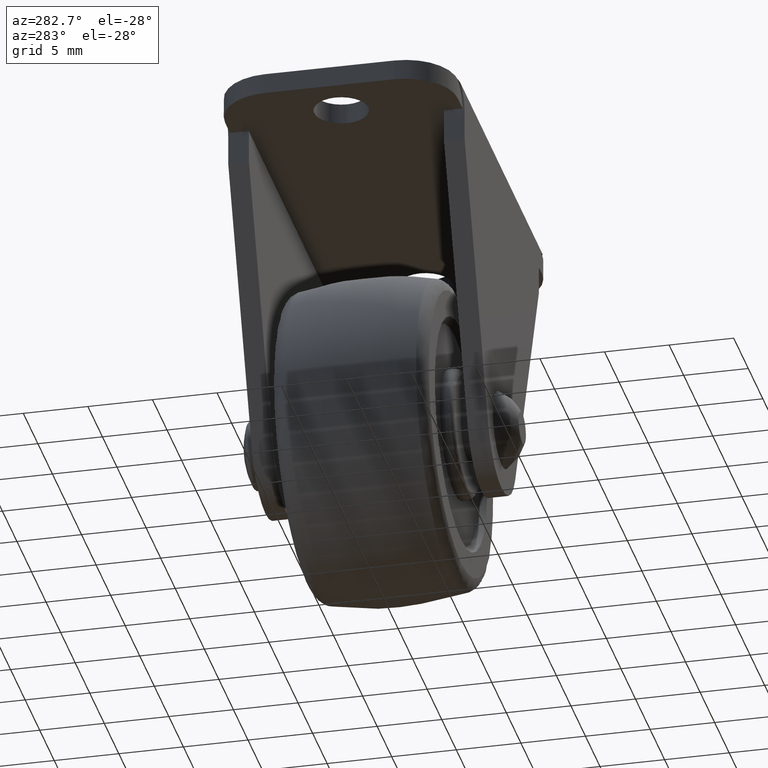
[diagram: clean part render]
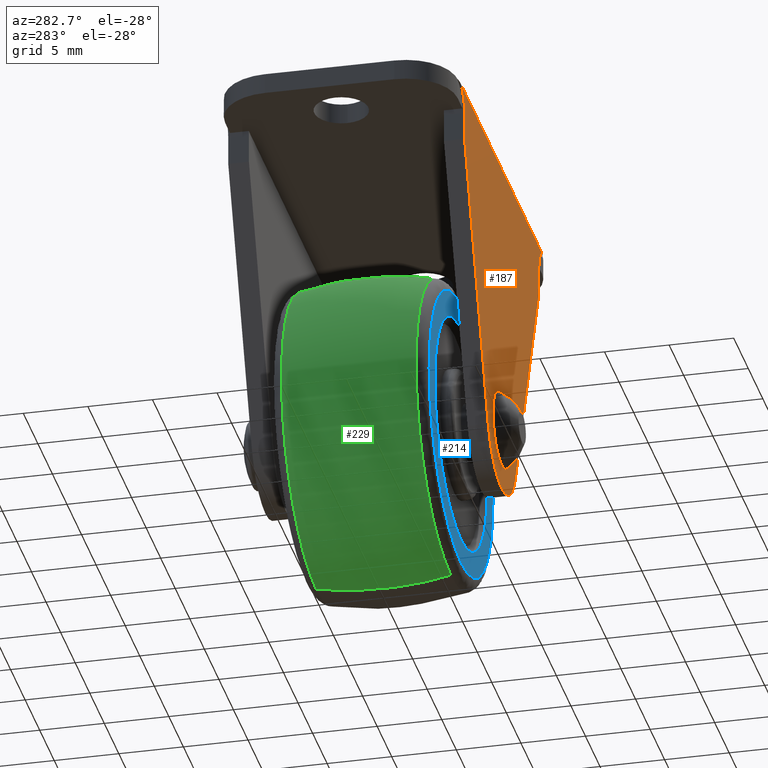
[diagram: same view with three faces highlighted in distinct colors, each labeled with its STEP entity id]
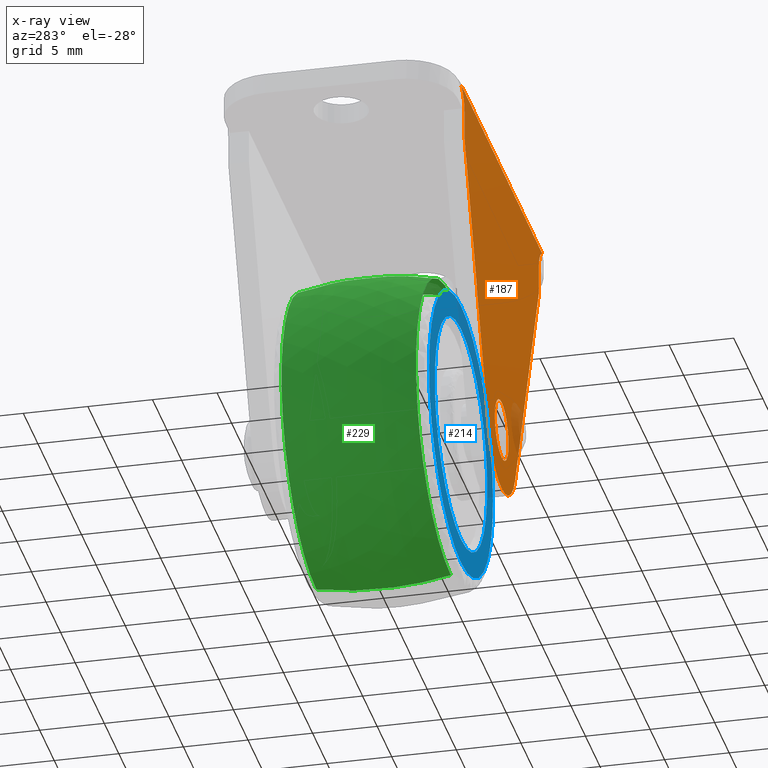
[diagram: x-ray of the same camera — body ghosted, the three highlighted faces saturated]
A machine part, auxiliary view with three faces highlighted in distinct colors.
The next image is the same camera in x-ray (body ghosted, the three faces saturated) — at least one of them is partly hidden behind the body in this view.
Their STEP definitions:

[orange] entity #187 — the highlighted planar face has unit normal (0, -1, 0).
#187=ADVANCED_FACE('',(#627,#628),#626,.T.);
#626=PLANE('',#1456);
#627=FACE_OUTER_BOUND('',#1457,.T.);
#628=FACE_BOUND('',#1458,.T.);
#1453=CARTESIAN_POINT('',(-1.66538647095E+01,-9.15000000000E+00,2.50300002289E+01));
#1454=DIRECTION('',(0.00000000000E+00,-1.00000000000E+00,0.00000000000E+00));
#1455=DIRECTION('',(0.00000000000E+00,0.00000000000E+00,-1.00000000000E+00));
#1456=AXIS2_PLACEMENT_3D('',#1453,#1454,#1455);
#1457=EDGE_LOOP('',(#2127,#2128,#2129,#2130,#2131,#2132,#2133,#2134));
#1458=EDGE_LOOP('',(#2135,#2136));
#2127=ORIENTED_EDGE('',*,*,#2385,.F.);
#2128=ORIENTED_EDGE('',*,*,#2391,.T.);
#2129=ORIENTED_EDGE('',*,*,#2477,.F.);
#2130=ORIENTED_EDGE('',*,*,#2478,.F.);
#2131=ORIENTED_EDGE('',*,*,#2479,.F.);
#2132=ORIENTED_EDGE('',*,*,#2480,.T.);
#2133=ORIENTED_EDGE('',*,*,#2481,.F.);
#2134=ORIENTED_EDGE('',*,*,#2482,.F.);
#2135=ORIENTED_EDGE('',*,*,#2483,.F.);
#2136=ORIENTED_EDGE('',*,*,#2484,.F.);
#2385=EDGE_CURVE('',#2739,#2746,#2747,.T.);
#2391=EDGE_CURVE('',#2739,#2780,#2788,.T.);
#2477=EDGE_CURVE('',#3365,#2780,#3366,.T.);
#2478=EDGE_CURVE('',#3372,#3365,#3373,.T.);
#2479=EDGE_CURVE('',#3379,#3372,#3380,.T.);
#2480=EDGE_CURVE('',#3379,#3386,#3387,.T.);
#2481=EDGE_CURVE('',#3393,#3386,#3394,.T.);
#2482=EDGE_CURVE('',#2746,#3393,#3400,.T.);
#2483=EDGE_CURVE('',#3406,#3407,#3408,.T.);
#2484=EDGE_CURVE('',#3407,#3406,#3414,.T.);
#2739=VERTEX_POINT('',#4097);
#2746=VERTEX_POINT('',#4104);
#2747=CIRCLE('',#4108,2.00000000000E+00);
#2780=VERTEX_POINT('',#4126);
#2788=LINE('',#4134,#4135);
#3365=VERTEX_POINT('',#4488);
#3366=CIRCLE('',#4492,2.00000000000E+00);
#3372=VERTEX_POINT('',#4493);
#3373=LINE('',#4494,#4495);
#3379=VERTEX_POINT('',#4497);
#3380=LINE('',#4498,#4499);
#3386=VERTEX_POINT('',#4501);
#3387=CIRCLE('',#4505,5.00000000000E+00);
#3393=VERTEX_POINT('',#4506);
#3394=LINE('',#4507,#4508);
#3400=LINE('',#4510,#4511);
#3406=VERTEX_POINT('',#4513);
#3407=VERTEX_POINT('',#4514);
#3408=CIRCLE('',#4518,2.35000000000E+00);
#3414=CIRCLE('',#4522,2.35000000000E+00);
#4097=CARTESIAN_POINT('',(1.38782247707E+01,-9.15000000000E+00,2.23000000000E+01));
#4104=CARTESIAN_POINT('',(1.27500045595E+01,-9.15000000000E+00,2.04999983807E+01));
#4105=CARTESIAN_POINT('',(1.47500045595E+01,-9.15000000000E+00,2.05000000000E+01));
#4106=DIRECTION('',(0.00000000000E+00,-1.00000000000E+00,0.00000000000E+00));
#4107=DIRECTION('',(-0.00000000000E+00,-0.00000000000E+00,1.00000000000E+00));
#4108=AXIS2_PLACEMENT_3D('',#4105,#4106,#4107);
#4126=CARTESIAN_POINT('',(-1.38782202113E+01,-9.15000000000E+00,2.23000000000E+01));
#4134=CARTESIAN_POINT('',(1.38782247707E+01,-9.15000000000E+00,2.23000000000E+01));
#4135=VECTOR('',#4136,2.77564449820E+01);
#4136=DIRECTION('',(-1.00000000000E+00,0.00000000000E+00,0.00000000000E+00));
#4488=CARTESIAN_POINT('',(-1.27500000000E+01,-9.15000000000E+00,2.05000000000E+01));
#4489=CARTESIAN_POINT('',(-1.47500000000E+01,-9.15000000000E+00,2.05000000000E+01));
#4490=DIRECTION('',(0.00000000000E+00,-1.00000000000E+00,0.00000000000E+00));
#4491=DIRECTION('',(-0.00000000000E+00,-0.00000000000E+00,1.00000000000E+00));
#4492=AXIS2_PLACEMENT_3D('',#4489,#4490,#4491);
#4493=CARTESIAN_POINT('',(-1.27500000000E+01,-9.15000000000E+00,1.82999462766E+01));
#4494=CARTESIAN_POINT('',(-1.27500000000E+01,-9.15000000000E+00,1.82999462766E+01));
#4495=VECTOR('',#4496,2.20005372345E+00);
#4496=DIRECTION('',(0.00000000000E+00,0.00000000000E+00,1.00000000000E+00));
#4497=CARTESIAN_POINT('',(-4.63882000000E+00,-9.15000000000E+00,-1.86584500000E+00));
#4498=CARTESIAN_POINT('',(-4.63882000000E+00,-9.15000000000E+00,-1.86584500000E+00));
#4499=VECTOR('',#4500,2.17359236933E+01);
#4500=DIRECTION('',(-3.73169326247E-01,0.00000000000E+00,9.27763253178E-01));
#4501=CARTESIAN_POINT('',(4.63881455946E+00,-9.15000000000E+00,-1.86584661925E+00));
#4502=CARTESIAN_POINT('',(-2.39461662330E-06,-9.15000000000E+00,-1.69897367088E-06));
#4503=DIRECTION('',(0.00000000000E+00,-1.00000000000E+00,0.00000000000E+00));
#4504=DIRECTION('',(-0.00000000000E+00,-0.00000000000E+00,1.00000000000E+00));
#4505=AXIS2_PLACEMENT_3D('',#4502,#4503,#4504);
#4506=CARTESIAN_POINT('',(1.27500045595E+01,-9.15000000000E+00,1.83000511044E+01));
#4507=CARTESIAN_POINT('',(1.27500045595E+01,-9.15000000000E+00,1.83000511044E+01));
#4508=VECTOR('',#4509,2.17360261827E+01);
#4509=DIRECTION('',(-3.73168026750E-01,0.00000000000E+00,-9.27763775867E-01));
#4510=CARTESIAN_POINT('',(1.27500045595E+01,-9.15000000000E+00,2.04999983807E+01));
#4511=VECTOR('',#4512,2.19994727635E+00);
#4512=DIRECTION('',(0.00000000000E+00,0.00000000000E+00,-1.00000000000E+00));
#4513=CARTESIAN_POINT('',(0.00000000000E+00,-9.15000000000E+00,2.35000000000E+00));
#4514=CARTESIAN_POINT('',(0.00000000000E+00,-9.15000000000E+00,-2.35000000000E+00));
#4515=CARTESIAN_POINT('',(0.00000000000E+00,-9.15000000000E+00,0.00000000000E+00));
#4516=DIRECTION('',(0.00000000000E+00,-1.00000000000E+00,-0.00000000000E+00));
#4517=DIRECTION('',(-1.22460635382E-16,0.00000000000E+00,-1.00000000000E+00));
#4518=AXIS2_PLACEMENT_3D('',#4515,#4516,#4517);
#4519=CARTESIAN_POINT('',(0.00000000000E+00,-9.15000000000E+00,0.00000000000E+00));
#4520=DIRECTION('',(0.00000000000E+00,-1.00000000000E+00,-0.00000000000E+00));
#4521=DIRECTION('',(-1.22460635382E-16,0.00000000000E+00,-1.00000000000E+00));
#4522=AXIS2_PLACEMENT_3D('',#4519,#4520,#4521);

[blue] entity #214 — the highlighted planar face has unit normal (0, 1, 0).
#214=ADVANCED_FACE('',(#902,#903),#901,.F.);
#901=PLANE('',#1596);
#902=FACE_OUTER_BOUND('',#1597,.T.);
#903=FACE_BOUND('',#1598,.T.);
#1593=CARTESIAN_POINT('',(-2.28077607351E+01,-6.00000000000E+00,-1.42654057000E+01));
#1594=DIRECTION('',(0.00000000000E+00,1.00000000000E+00,0.00000000000E+00));
#1595=DIRECTION('',(0.00000000000E+00,0.00000000000E+00,1.00000000000E+00));
#1596=AXIS2_PLACEMENT_3D('',#1593,#1594,#1595);
#1597=EDGE_LOOP('',(#2263,#2264));
#1598=EDGE_LOOP('',(#2265,#2266));
#2263=ORIENTED_EDGE('',*,*,#2529,.T.);
#2264=ORIENTED_EDGE('',*,*,#2530,.T.);
#2265=ORIENTED_EDGE('',*,*,#2531,.F.);
#2266=ORIENTED_EDGE('',*,*,#2532,.F.);
#2529=EDGE_CURVE('',#3707,#3708,#3709,.T.);
#2530=EDGE_CURVE('',#3708,#3707,#3715,.T.);
#2531=EDGE_CURVE('',#3721,#3722,#3723,.T.);
#2532=EDGE_CURVE('',#3722,#3721,#3729,.T.);
#3707=VERTEX_POINT('',#4689);
#3708=VERTEX_POINT('',#4690);
#3709=CIRCLE('',#4694,1.09733890000E+01);
#3715=CIRCLE('',#4698,1.09733890000E+01);
#3721=VERTEX_POINT('',#4699);
#3722=VERTEX_POINT('',#4700);
#3723=CIRCLE('',#4704,9.00000000000E+00);
#3729=CIRCLE('',#4708,9.00000000000E+00);
#4689=CARTESIAN_POINT('',(0.00000000000E+00,-6.00000000000E+00,-1.09733890000E+01));
#4690=CARTESIAN_POINT('',(5.92118946467E-16,-6.00000000000E+00,1.09733890000E+01));
#4691=CARTESIAN_POINT('',(0.00000000000E+00,-6.00000000000E+00,-8.06199264573E-16));
#4692=DIRECTION('',(0.00000000000E+00,-1.00000000000E+00,-0.00000000000E+00));
#4693=DIRECTION('',(-1.22460635382E-16,0.00000000000E+00,-1.00000000000E+00));
#4694=AXIS2_PLACEMENT_3D('',#4691,#4692,#4693);
#4695=CARTESIAN_POINT('',(0.00000000000E+00,-6.00000000000E+00,-8.06199264573E-16));
#4696=DIRECTION('',(0.00000000000E+00,-1.00000000000E+00,-0.00000000000E+00));
#4697=DIRECTION('',(-1.22460635382E-16,0.00000000000E+00,-1.00000000000E+00));
#4698=AXIS2_PLACEMENT_3D('',#4695,#4696,#4697);
#4699=CARTESIAN_POINT('',(5.92118946467E-16,-6.00000000000E+00,9.00000000000E+00));
#4700=CARTESIAN_POINT('',(0.00000000000E+00,-6.00000000000E+00,-9.00000000000E+00));
#4701=CARTESIAN_POINT('',(0.00000000000E+00,-6.00000000000E+00,-8.06199264573E-16));
#4702=DIRECTION('',(0.00000000000E+00,-1.00000000000E+00,-0.00000000000E+00));
#4703=DIRECTION('',(-1.22460635382E-16,0.00000000000E+00,-1.00000000000E+00));
#4704=AXIS2_PLACEMENT_3D('',#4701,#4702,#4703);
#4705=CARTESIAN_POINT('',(0.00000000000E+00,-6.00000000000E+00,-8.06199264573E-16));
#4706=DIRECTION('',(0.00000000000E+00,-1.00000000000E+00,-0.00000000000E+00));
#4707=DIRECTION('',(-1.22460635382E-16,0.00000000000E+00,-1.00000000000E+00));
#4708=AXIS2_PLACEMENT_3D('',#4705,#4706,#4707);

[green] entity #229 — the highlighted face is a freeform B-spline surface patch.
#229=ADVANCED_FACE('',(#1056),#1055,.T.);
#1055=( BOUNDED_SURFACE() B_SPLINE_SURFACE( 2,2,((#1779,#1780,#1781,#1782,#1783),(#1784,#1785,#1786,#1787,#1788),(#1789,#1790,#1791,#1792,#1793)), .UNSPECIFIED.,.F.,.F.,.F.) B_SPLINE_SURFACE_WITH_KNOTS((3,3),(3,2,3),(-2.09870592328E-01,2.09870728738E-01),(3.14159265359E+00,4.71238898038E+00,6.28318530718E+00), .UNSPECIFIED. ) GEOMETRIC_REPRESENTATION_ITEM() RATIONAL_B_SPLINE_SURFACE(((1.00000000000E+00,7.07106781187E-01,1.00000000000E+00,7.07106781187E-01,1.00000000000E+00),(9.78057868636E-01,6.91591351305E-01,9.78057868636E-01,6.91591351305E-01,9.78057868636E-01),(1.00000000000E+00,7.07106781187E-01,1.00000000000E+00,7.07106781187E-01,1.00000000000E+00))) REPRESENTATION_ITEM('') SURFACE() );
#1056=FACE_OUTER_BOUND('',#1794,.T.);
#1779=CARTESIAN_POINT('',(-1.46358180207E-15,5.20833333493E+00,-1.19514470711E+01));
#1780=CARTESIAN_POINT('',(-1.19514470711E+01,5.20833333493E+00,-1.19514470711E+01));
#1781=CARTESIAN_POINT('',(-1.19514470711E+01,5.20833333493E+00,1.46358180207E-15));
#1782=CARTESIAN_POINT('',(-1.19514470711E+01,5.20833333493E+00,1.19514470711E+01));
#1783=CARTESIAN_POINT('',(1.46358180207E-15,5.20833333493E+00,1.19514470711E+01));
#1784=CARTESIAN_POINT('',(-1.59944118267E-15,-1.74337049819E-06,-1.30608597422E+01));
#1785=CARTESIAN_POINT('',(-1.30608597422E+01,-1.74337049819E-06,-1.30608597422E+01));
#1786=CARTESIAN_POINT('',(-1.30608597422E+01,-1.74337049819E-06,1.59944118267E-15));
#1787=CARTESIAN_POINT('',(-1.30608597422E+01,-1.74337049819E-06,1.30608597422E+01));
#1788=CARTESIAN_POINT('',(1.59944118267E-15,-1.74337049819E-06,1.30608597422E+01));
#1789=CARTESIAN_POINT('',(-1.46358171506E-15,-5.20833667034E+00,-1.19514463607E+01));
#1790=CARTESIAN_POINT('',(-1.19514463607E+01,-5.20833667034E+00,-1.19514463607E+01));
#1791=CARTESIAN_POINT('',(-1.19514463607E+01,-5.20833667034E+00,1.46358171506E-15));
#1792=CARTESIAN_POINT('',(-1.19514463607E+01,-5.20833667034E+00,1.19514463607E+01));
#1793=CARTESIAN_POINT('',(1.46358171506E-15,-5.20833667034E+00,1.19514463607E+01));
#1794=EDGE_LOOP('',(#2323,#2324,#2325,#2326));
#2323=ORIENTED_EDGE('',*,*,#2556,.F.);
#2324=ORIENTED_EDGE('',*,*,#2560,.F.);
#2325=ORIENTED_EDGE('',*,*,#2562,.T.);
#2326=ORIENTED_EDGE('',*,*,#2561,.T.);
#2556=EDGE_CURVE('',#3881,#3888,#3889,.T.);
#2560=EDGE_CURVE('',#3908,#3881,#3915,.T.);
#2561=EDGE_CURVE('',#3907,#3888,#3921,.T.);
#2562=EDGE_CURVE('',#3908,#3907,#3927,.T.);
#3881=VERTEX_POINT('',#4797);
#3888=VERTEX_POINT('',#4801);
#3889=CIRCLE('',#4805,1.19514463607E+01);
#3907=VERTEX_POINT('',#4814);
#3908=VERTEX_POINT('',#4815);
#3915=(BOUNDED_CURVE() B_SPLINE_CURVE(2,(#4820,#4821,#4822),.UNSPECIFIED.,.F.,.F.) B_SPLINE_CURVE_WITH_KNOTS((3,3),(-2.09870592328E-01,2.09870728738E-01),.UNSPECIFIED.) CURVE() GEOMETRIC_REPRESENTATION_ITEM() RATIONAL_B_SPLINE_CURVE((1.00000000000E+00,9.78057868636E-01,1.00000000000E+00)) REPRESENTATION_ITEM('') );
#3921=(BOUNDED_CURVE() B_SPLINE_CURVE(2,(#4823,#4824,#4825),.UNSPECIFIED.,.F.,.F.) B_SPLINE_CURVE_WITH_KNOTS((3,3),(-2.09870592328E-01,2.09870728738E-01),.UNSPECIFIED.) CURVE() GEOMETRIC_REPRESENTATION_ITEM() RATIONAL_B_SPLINE_CURVE((1.00000000000E+00,9.78057868636E-01,1.00000000000E+00)) REPRESENTATION_ITEM('') );
#3927=CIRCLE('',#4829,1.19514468825E+01);
#4797=CARTESIAN_POINT('',(0.00000000000E+00,-5.20833667034E+00,1.19514463607E+01));
#4801=CARTESIAN_POINT('',(0.00000000000E+00,-5.20833667034E+00,-1.19514463607E+01));
#4802=CARTESIAN_POINT('',(0.00000000000E+00,-5.20833667034E+00,-8.06199264573E-16));
#4803=DIRECTION('',(0.00000000000E+00,-1.00000000000E+00,-0.00000000000E+00));
#4804=DIRECTION('',(-1.22460635382E-16,0.00000000000E+00,-1.00000000000E+00));
#4805=AXIS2_PLACEMENT_3D('',#4802,#4803,#4804);
#4814=CARTESIAN_POINT('',(0.00000000000E+00,5.20833333493E+00,-1.19514468825E+01));
#4815=CARTESIAN_POINT('',(-5.92118946467E-16,5.20833333493E+00,1.19514468825E+01));
#4820=CARTESIAN_POINT('',(1.46358180207E-15,5.20833333493E+00,1.19514470711E+01));
#4821=CARTESIAN_POINT('',(1.59944118267E-15,-1.74337049819E-06,1.30608597422E+01));
#4822=CARTESIAN_POINT('',(1.46358171506E-15,-5.20833667034E+00,1.19514463607E+01));
#4823=CARTESIAN_POINT('',(-1.46358180207E-15,5.20833333493E+00,-1.19514470711E+01));
#4824=CARTESIAN_POINT('',(-1.59944118267E-15,-1.74337049819E-06,-1.30608597422E+01));
#4825=CARTESIAN_POINT('',(-1.46358171506E-15,-5.20833667034E+00,-1.19514463607E+01));
#4826=CARTESIAN_POINT('',(0.00000000000E+00,5.20833333493E+00,-8.06199264573E-16));
#4827=DIRECTION('',(0.00000000000E+00,-1.00000000000E+00,-0.00000000000E+00));
#4828=DIRECTION('',(-1.22460635382E-16,0.00000000000E+00,-1.00000000000E+00));
#4829=AXIS2_PLACEMENT_3D('',#4826,#4827,#4828);